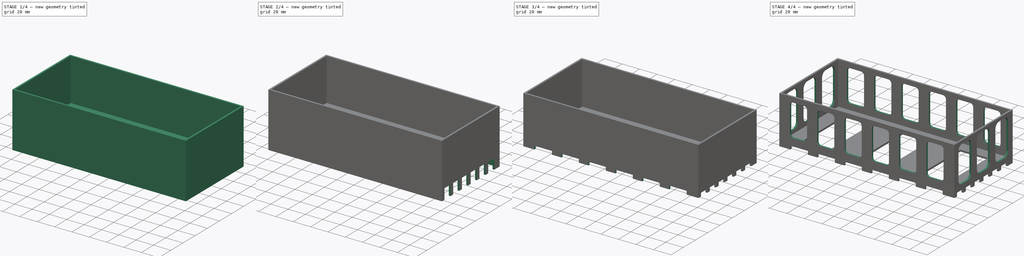
[diagram: build sequence overview — one tinted view per stage of 4, left to right]
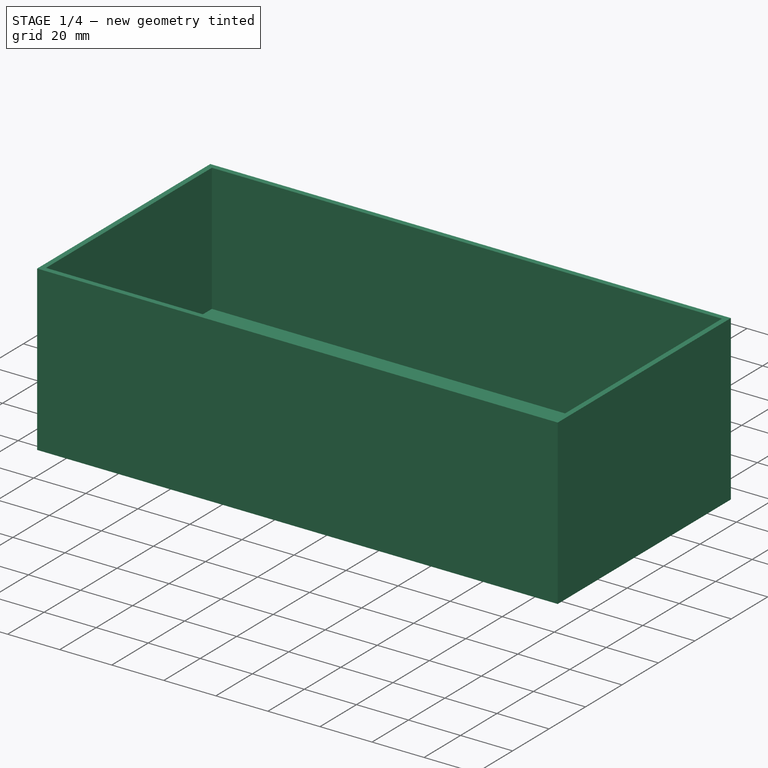
[diagram: stage 1 of 4 — iso view after this stage's code; geometry added in this stage tinted green]
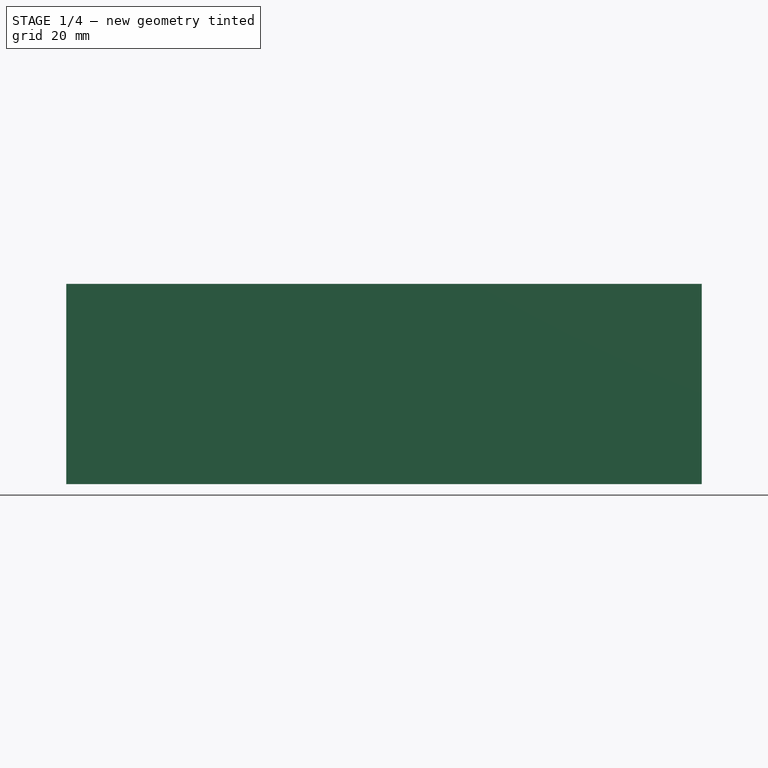
[diagram: stage 1 of 4 — front view after this stage's code; geometry added in this stage tinted green]
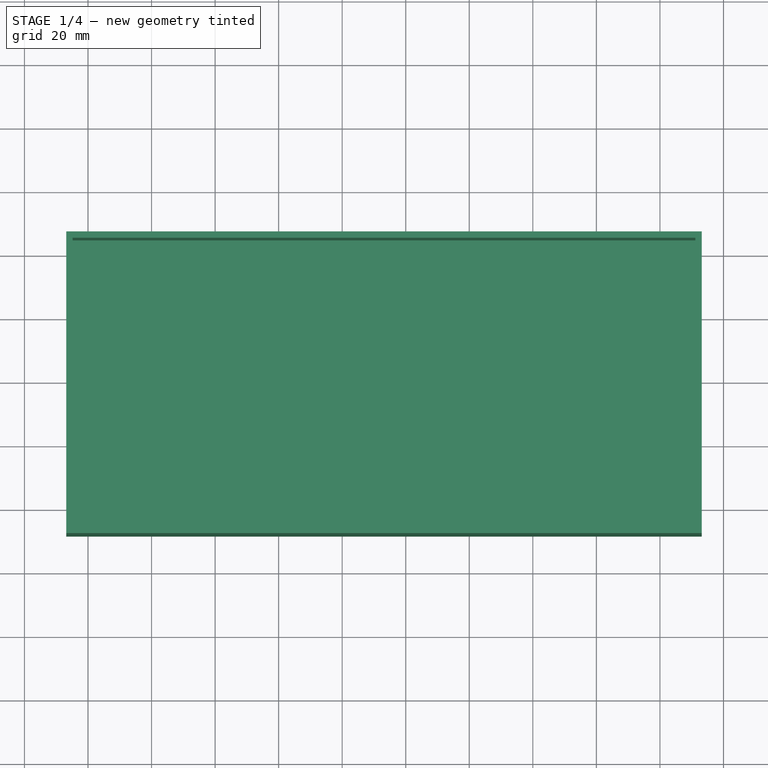
[diagram: stage 1 of 4 — top view after this stage's code; geometry added in this stage tinted green]
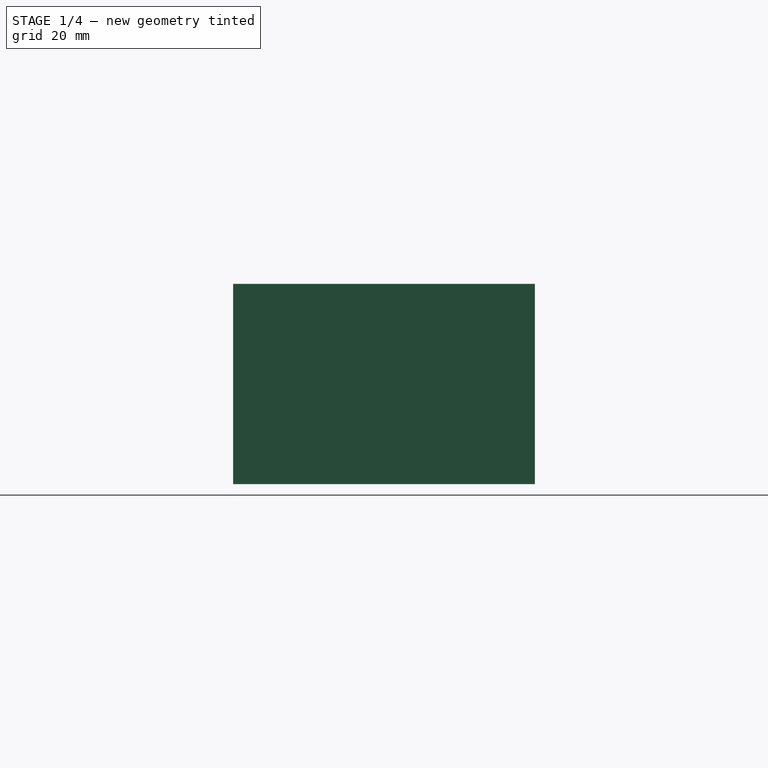
[diagram: stage 1 of 4 — right view after this stage's code; geometry added in this stage tinted green]
FCSTD DOCUMENT  (FreeCAD 1.0R39319 (Git))
Label: washstand01
License: All rights reserved
LicenseURL: https://en.wikipedia.org/wiki/All_rights_reserved
objects: Sketcher::SketchObject×9, PartDesign::Pocket×8, PartDesign::Pad×1, PartDesign::Body×1
note: 46 computed .brp shape members not serialized (recipe doc carries the construction recipe); baked Part::Feature solids carry a one-line shape summary decoded from their .brp

FEATURE [Sketcher::SketchObject] Sketch
  ArcFitTolerance = 1e-06
  AttachmentSupport = -> [XY_Plane]
  FullyConstrained = false
  MakeInternals = false
  MapMode = 5
  sketch-geometry (4):
    g0: LineSegment StartX=-126.841 StartY=46.665 StartZ=0 EndX=-126.841 EndY=-48.335 EndZ=0
    g1: LineSegment StartX=-126.841 StartY=-48.335 StartZ=0 EndX=73.1595 EndY=-48.335 EndZ=0
    g2: LineSegment StartX=73.1595 StartY=-48.335 StartZ=0 EndX=73.1595 EndY=46.665 EndZ=0
    g3: LineSegment StartX=73.1595 StartY=46.665 StartZ=0 EndX=-126.841 EndY=46.665 EndZ=0
  constraints (10):
    c: Coincident(g0,g1)
    c: Coincident(g1,g2)
    c: Coincident(g2,g3)
    c: Coincident(g3,g0)
    c: Vertical(g0)
    c: Vertical(g2)
    c: Horizontal(g1)
    c: Horizontal(g3)
    c: DistanceX(g3,g3) = 200
    c: DistanceY(g2,g2) = 95
FEATURE [PartDesign::Pad] Pad
  Direction = (0,0,1)
  Length = 50
  Length2 = 13
  Profile = -> Sketch
  ReferenceAxis = -> Sketch [N_Axis]
  Refine = true
  Suppressed = false
  Type = 4
FEATURE [Sketcher::SketchObject] Sketch001
  ArcFitTolerance = 1e-06
  AttachmentSupport = -> [Pad]
  ExternalGeometry = -> [Pad]
  FullyConstrained = true
  MakeInternals = false
  MapMode = 5
  Placement = pos=(0,0,50) rot=(0,0,1;0rad)
  sketch-geometry (4):
    g0: LineSegment StartX=-124.841 StartY=44.665 StartZ=0 EndX=-124.841 EndY=-46.335 EndZ=0
    g1: LineSegment StartX=-124.841 StartY=-46.335 StartZ=0 EndX=71.1595 EndY=-46.335 EndZ=0
    g2: LineSegment StartX=71.1595 StartY=-46.335 StartZ=0 EndX=71.1595 EndY=44.665 EndZ=0
    g3: LineSegment StartX=71.1595 StartY=44.665 StartZ=0 EndX=-124.841 EndY=44.665 EndZ=0
  constraints (12):
    c: Coincident(g0,g1)
    c: Coincident(g1,g2)
    c: Coincident(g2,g3)
    c: Coincident(g3,g0)
    c: Vertical(g0)
    c: Vertical(g2)
    c: Horizontal(g1)
    c: Horizontal(g3)
    c: DistanceX(g3,g3) = 196
    c: DistanceY(g2,g2) = 91
    c: Distance(g-6,g2) = 2
    c: Distance(g-5,g1) = 2
FEATURE [PartDesign::Pocket] Pocket
  BaseFeature = -> Pad
  Direction = (0,0,-1)
  Length = 49
  Length2 = 5
  Profile = -> Sketch001
  ReferenceAxis = -> Sketch001 [N_Axis]
  Refine = true
  Suppressed = false
  Type = 0
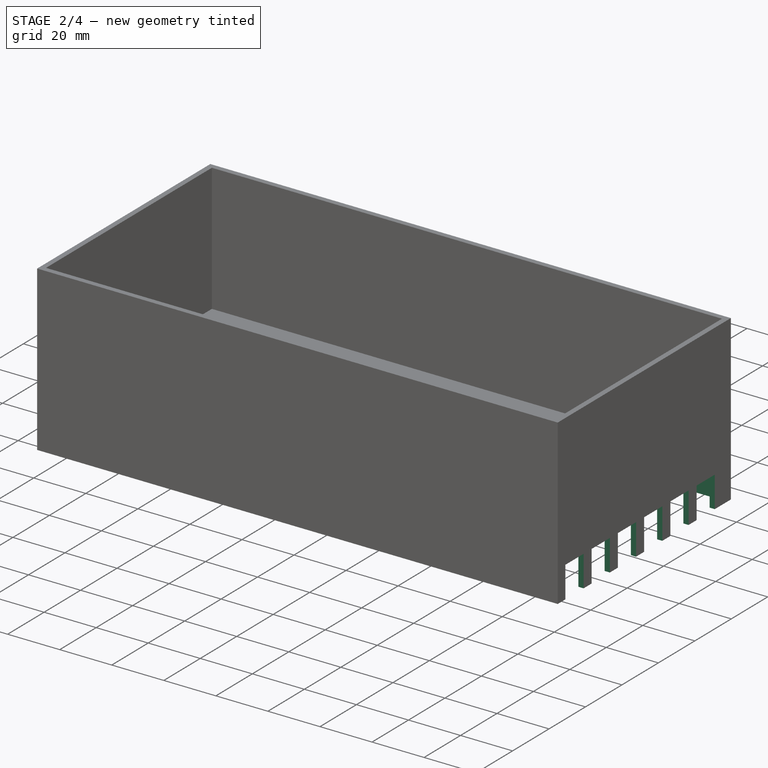
[diagram: stage 2 of 4 — iso view after this stage's code; geometry added in this stage tinted green]
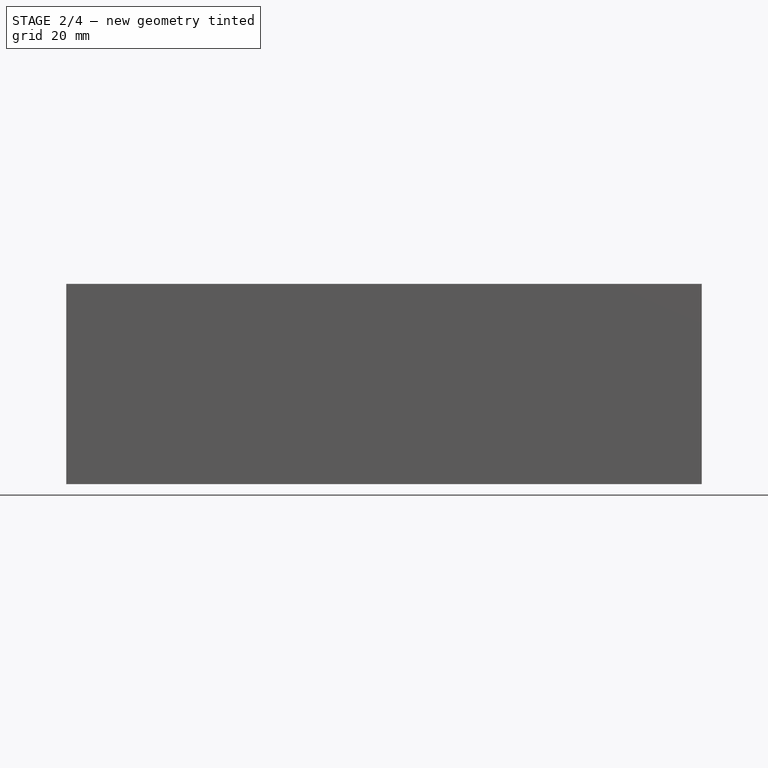
[diagram: stage 2 of 4 — front view after this stage's code; geometry added in this stage tinted green]
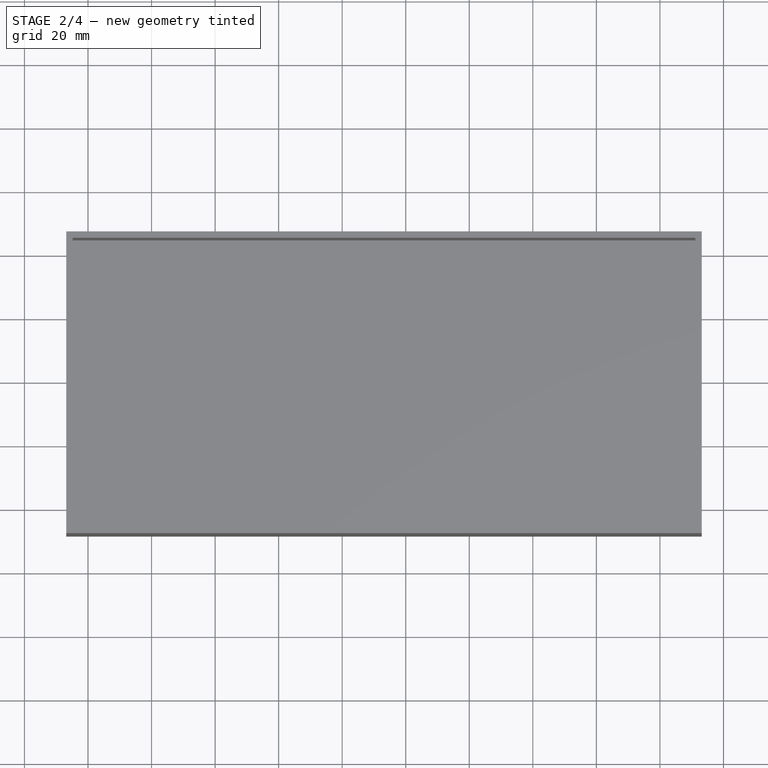
[diagram: stage 2 of 4 — top view after this stage's code; geometry added in this stage tinted green]
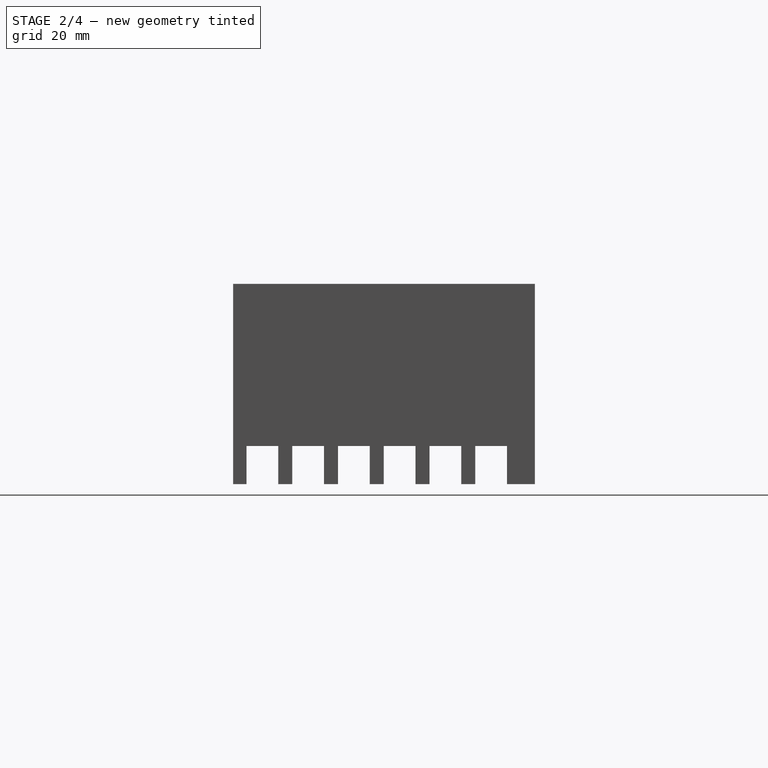
[diagram: stage 2 of 4 — right view after this stage's code; geometry added in this stage tinted green]
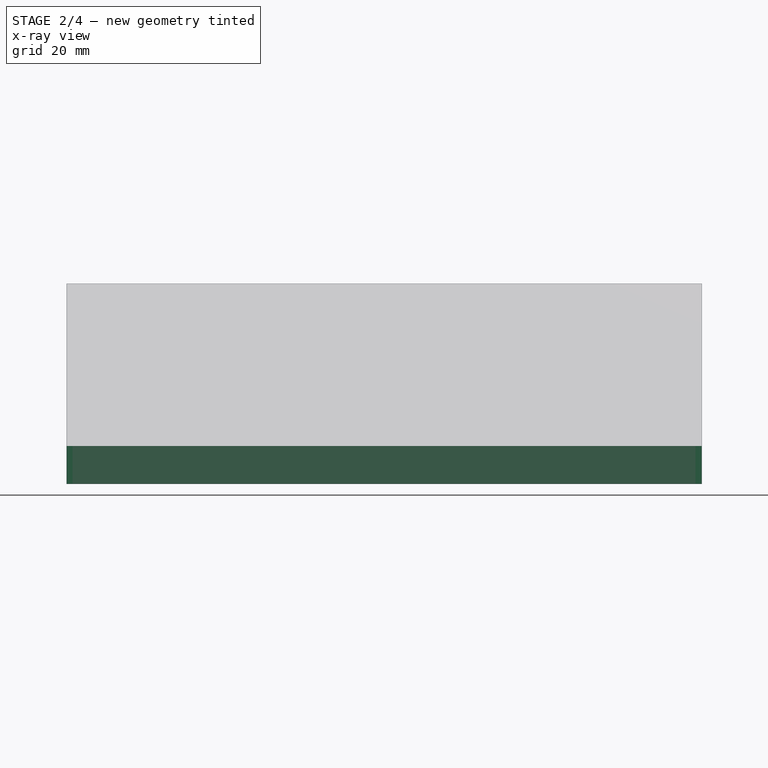
[diagram: stage 2 of 4 — x-ray composite at the front view; earlier geometry ghosted, this stage's added geometry solid]
FEATURE [Sketcher::SketchObject] Sketch002
  ArcFitTolerance = 1e-06
  AttachmentSupport = -> [Pocket]
  ExternalGeometry = -> [Pocket]
  FullyConstrained = true
  MakeInternals = false
  MapMode = 5
  Placement = pos=(0,0,-13) rot=(1,0,0;3.14159rad)
  sketch-geometry (4):
    g0: LineSegment StartX=-124.841 StartY=46.335 StartZ=0 EndX=-124.841 EndY=-44.665 EndZ=0
    g1: LineSegment StartX=-124.841 StartY=-44.665 StartZ=0 EndX=71.1595 EndY=-44.665 EndZ=0
    g2: LineSegment StartX=71.1595 StartY=-44.665 StartZ=0 EndX=71.1595 EndY=46.335 EndZ=0
    g3: LineSegment StartX=71.1595 StartY=46.335 StartZ=0 EndX=-124.841 EndY=46.335 EndZ=0
  constraints (10):
    c: Coincident(g0,g1)
    c: Coincident(g1,g2)
    c: Coincident(g2,g3)
    c: Coincident(g3,g0)
    c: Vertical(g0)
    c: Vertical(g2)
    c: Horizontal(g1)
    c: Horizontal(g3)
    c: Coincident(g0,g-5)
    c: Coincident(g1,g-6)
FEATURE [PartDesign::Pocket] Pocket001
  BaseFeature = -> Pocket
  Direction = (0,0,1)
  Length = 12
  Length2 = 5
  Profile = -> Sketch002
  ReferenceAxis = -> Sketch002 [N_Axis]
  Refine = true
  Suppressed = false
  Type = 0
FEATURE [Sketcher::SketchObject] Sketch003
  ArcFitTolerance = 1e-06
  AttachmentSupport = -> [Pocket001]
  FullyConstrained = false
  MakeInternals = false
  MapMode = 5
  Placement = pos=(73.1595,0,0) rot=(0.57735,0.57735,0.57735;2.0944rad)
  sketch-geometry (24):
    g0: LineSegment StartX=-34.1153 StartY=-14.5307 StartZ=0 EndX=-34.1153 EndY=-1 EndZ=0
    g1: LineSegment StartX=-34.1153 StartY=-1 StartZ=0 EndX=-44.1153 EndY=-1 EndZ=0
    g2: LineSegment StartX=-44.1153 StartY=-1 StartZ=0 EndX=-44.1153 EndY=-14.5307 EndZ=0
    g3: LineSegment StartX=-44.1153 StartY=-14.5307 StartZ=0 EndX=-34.1153 EndY=-14.5307 EndZ=0
    g4: LineSegment StartX=-19.7179 StartY=-14.5307 StartZ=0 EndX=-19.7179 EndY=-1 EndZ=0
    g5: LineSegment StartX=-19.7179 StartY=-1 StartZ=0 EndX=-29.7179 EndY=-1 EndZ=0
    g6: LineSegment StartX=-29.7179 StartY=-1 StartZ=0 EndX=-29.7179 EndY=-14.5307 EndZ=0
    g7: LineSegment StartX=-29.7179 StartY=-14.5307 StartZ=0 EndX=-19.7179 EndY=-14.5307 EndZ=0
    g8: LineSegment StartX=-5.32051 StartY=-14.5307 StartZ=0 EndX=-5.32051 EndY=-1 EndZ=0
    g9: LineSegment StartX=-5.32051 StartY=-1 StartZ=0 EndX=-15.3205 EndY=-1 EndZ=0
    g10: LineSegment StartX=-15.3205 StartY=-1 StartZ=0 EndX=-15.3205 EndY=-14.5307 EndZ=0
    g11: LineSegment StartX=-15.3205 StartY=-14.5307 StartZ=0 EndX=-5.32051 EndY=-14.5307 EndZ=0
    g12: LineSegment StartX=9.07687 StartY=-14.5307 StartZ=0 EndX=9.07687 EndY=-1 EndZ=0
    g13: LineSegment StartX=9.07687 StartY=-1 StartZ=0 EndX=-0.923132 EndY=-1 EndZ=0
    g14: LineSegment StartX=-0.923132 StartY=-1 StartZ=0 EndX=-0.923132 EndY=-14.5307 EndZ=0
    g15: LineSegment StartX=-0.923132 StartY=-14.5307 StartZ=0 EndX=9.07687 EndY=-14.5307 EndZ=0
    g16: LineSegment StartX=23.4742 StartY=-14.5307 StartZ=0 EndX=23.4742 EndY=-1 EndZ=0
    g17: LineSegment StartX=23.4742 StartY=-1 StartZ=0 EndX=13.4742 EndY=-1 EndZ=0
    g18: LineSegment StartX=13.4742 StartY=-1 StartZ=0 EndX=13.4742 EndY=-14.5307 EndZ=0
    g19: LineSegment StartX=13.4742 StartY=-14.5307 StartZ=0 EndX=23.4742 EndY=-14.5307 EndZ=0
    g20: LineSegment StartX=37.8716 StartY=-14.5307 StartZ=0 EndX=37.8716 EndY=-1 EndZ=0
    g21: LineSegment StartX=37.8716 StartY=-1 StartZ=0 EndX=27.8716 EndY=-1 EndZ=0
    g22: LineSegment StartX=27.8716 StartY=-1 StartZ=0 EndX=27.8716 EndY=-14.5307 EndZ=0
    g23: LineSegment StartX=27.8716 StartY=-14.5307 StartZ=0 EndX=37.8716 EndY=-14.5307 EndZ=0
  constraints (48):
    c: Coincident(g0,g1)
    c: Coincident(g1,g2)
    c: Coincident(g2,g3)
    c: Coincident(g3,g0)
    c: Vertical(g0)
    c: Vertical(g2)
    c: Horizontal(g1)
    c: Horizontal(g3)
    c: Coincident(g4,g5)
    c: Coincident(g8,g9)
    c: Coincident(g12,g13)
    c: Coincident(g16,g17)
    c: Coincident(g20,g21)
    c: Coincident(g5,g6)
    c: Coincident(g9,g10)
    c: Coincident(g13,g14)
    c: Coincident(g17,g18)
    c: Coincident(g21,g22)
    c: Coincident(g6,g7)
    c: Coincident(g10,g11)
    c: Coincident(g14,g15)
    c: Coincident(g18,g19)
    c: Coincident(g22,g23)
    c: Coincident(g7,g4)
    c: Coincident(g11,g8)
    c: Coincident(g15,g12)
    c: Coincident(g19,g16)
    c: Coincident(g23,g20)
    c: Vertical(g4)
    c: Vertical(g8)
    c: Vertical(g12)
    c: Vertical(g16)
    c: Vertical(g20)
    c: Vertical(g6)
    c: Vertical(g10)
    c: Vertical(g14)
    c: Vertical(g18)
    c: Vertical(g22)
    c: Horizontal(g5)
    c: Horizontal(g9)
    c: Horizontal(g13)
    c: Horizontal(g17)
    c: Horizontal(g21)
    c: Horizontal(g7)
    c: Horizontal(g11)
    c: Horizontal(g15)
    c: Horizontal(g19)
    c: Horizontal(g23)
FEATURE [PartDesign::Pocket] Pocket002
  BaseFeature = -> Pocket001
  Direction = (-1,0,0)
  Length = 5
  Length2 = 5
  Profile = -> Sketch003
  ReferenceAxis = -> Sketch003 [N_Axis]
  Refine = true
  Suppressed = false
  Type = 1
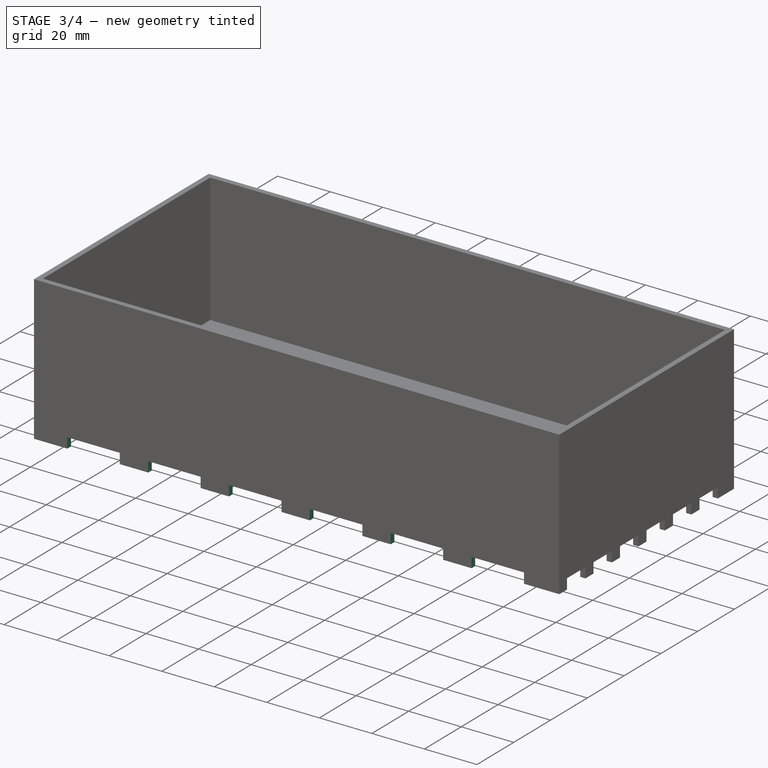
[diagram: stage 3 of 4 — iso view after this stage's code; geometry added in this stage tinted green]
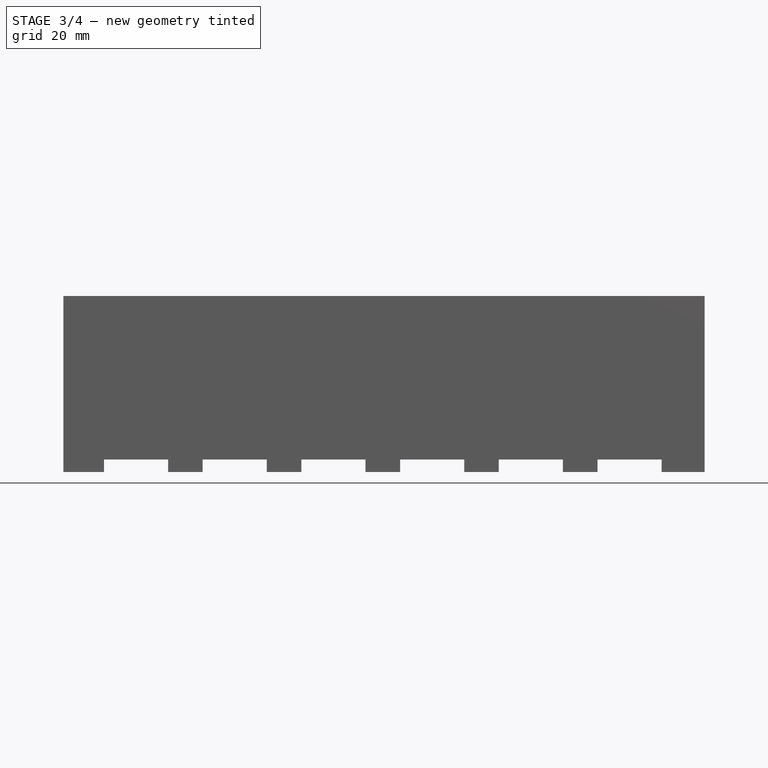
[diagram: stage 3 of 4 — front view after this stage's code; geometry added in this stage tinted green]
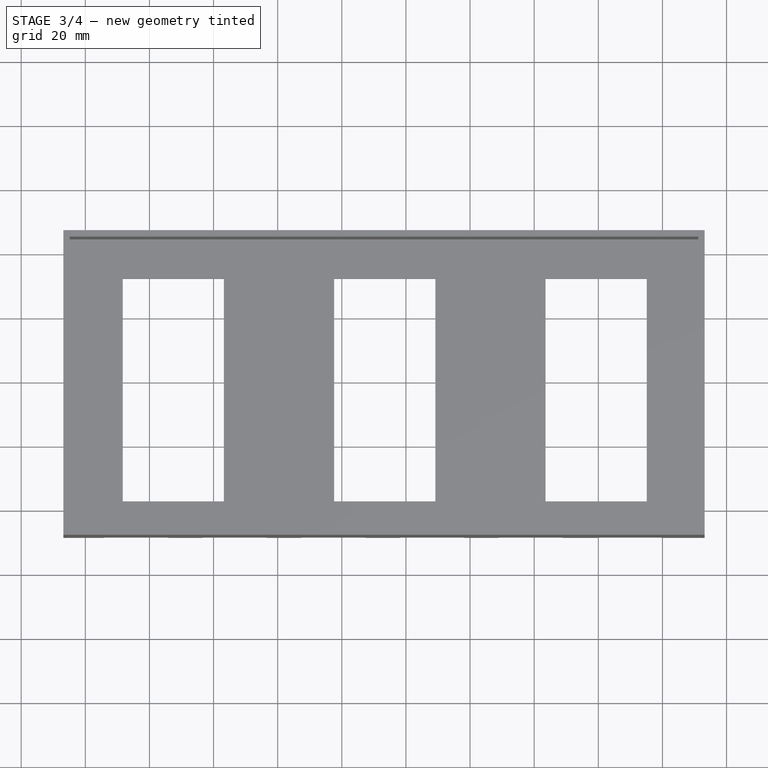
[diagram: stage 3 of 4 — top view after this stage's code; geometry added in this stage tinted green]
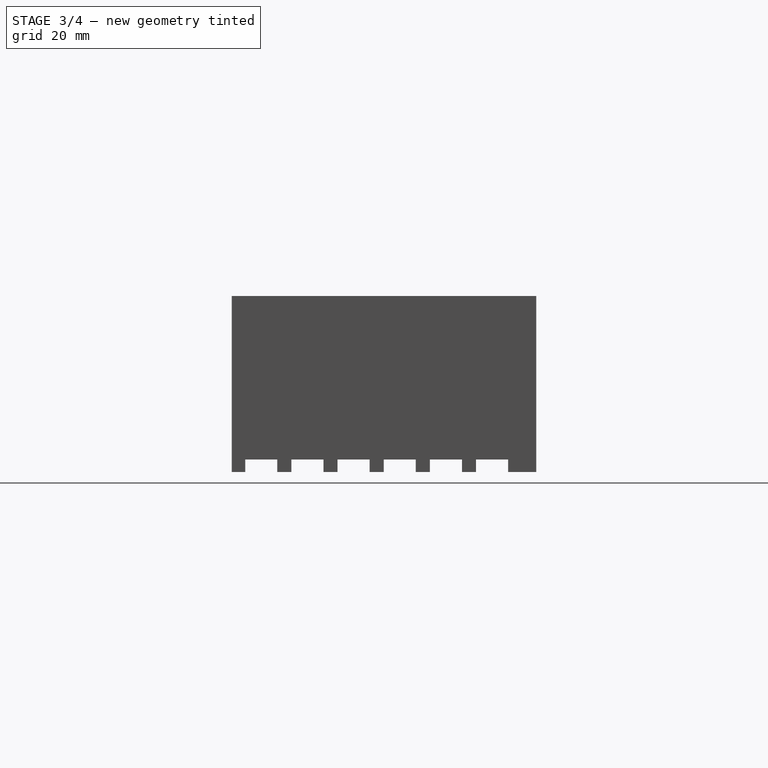
[diagram: stage 3 of 4 — right view after this stage's code; geometry added in this stage tinted green]
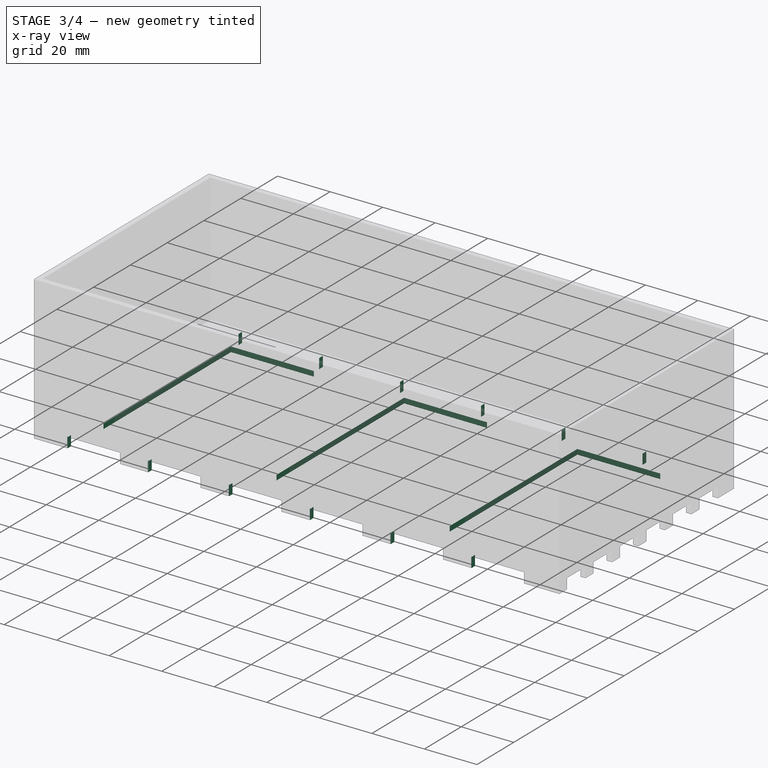
[diagram: stage 3 of 4 — x-ray composite at the iso view; earlier geometry ghosted, this stage's added geometry solid]
FEATURE [Sketcher::SketchObject] Sketch004
  ArcFitTolerance = 1e-06
  AttachmentSupport = -> [Pocket002]
  ExternalGeometry = -> [Pocket002]
  FullyConstrained = false
  MakeInternals = false
  MapMode = 5
  Placement = pos=(0,46.665,0) rot=(0,0.707107,0.707107;3.14159rad)
  sketch-geometry (24):
    g0: LineSegment StartX=-39.7324 StartY=-20.6591 StartZ=0 EndX=-39.7324 EndY=-1 EndZ=0
    g1: LineSegment StartX=-39.7324 StartY=-1 StartZ=0 EndX=-59.7324 EndY=-1 EndZ=0
    g2: LineSegment StartX=-59.7324 StartY=-1 StartZ=0 EndX=-59.7324 EndY=-20.6591 EndZ=0
    g3: LineSegment StartX=-59.7324 StartY=-20.6591 StartZ=0 EndX=-39.7324 EndY=-20.6591 EndZ=0
    g4: LineSegment StartX=-8.95152 StartY=-20.6591 StartZ=0 EndX=-8.95152 EndY=-1 EndZ=0
    g5: LineSegment StartX=-8.95152 StartY=-1 StartZ=0 EndX=-28.9515 EndY=-1 EndZ=0
    g6: LineSegment StartX=-28.9515 StartY=-1 StartZ=0 EndX=-28.9515 EndY=-20.6591 EndZ=0
    g7: LineSegment StartX=-28.9515 StartY=-20.6591 StartZ=0 EndX=-8.95152 EndY=-20.6591 EndZ=0
    g8: LineSegment StartX=21.8294 StartY=-20.6591 StartZ=0 EndX=21.8294 EndY=-1 EndZ=0
    g9: LineSegment StartX=21.8294 StartY=-1 StartZ=0 EndX=1.82938 EndY=-1 EndZ=0
    g10: LineSegment StartX=1.82938 StartY=-1 StartZ=0 EndX=1.82938 EndY=-20.6591 EndZ=0
    g11: LineSegment StartX=1.82938 StartY=-20.6591 StartZ=0 EndX=21.8294 EndY=-20.6591 EndZ=0
    g12: LineSegment StartX=52.6103 StartY=-20.6591 StartZ=0 EndX=52.6103 EndY=-1 EndZ=0
    g13: LineSegment StartX=52.6103 StartY=-1 StartZ=0 EndX=32.6103 EndY=-1 EndZ=0
    g14: LineSegment StartX=32.6103 StartY=-1 StartZ=0 EndX=32.6103 EndY=-20.6591 EndZ=0
    g15: LineSegment StartX=32.6103 StartY=-20.6591 StartZ=0 EndX=52.6103 EndY=-20.6591 EndZ=0
    g16: LineSegment StartX=83.3912 StartY=-20.6591 StartZ=0 EndX=83.3912 EndY=-1 EndZ=0
    g17: LineSegment StartX=83.3912 StartY=-1 StartZ=0 EndX=63.3912 EndY=-1 EndZ=0
    g18: LineSegment StartX=63.3912 StartY=-1 StartZ=0 EndX=63.3912 EndY=-20.6591 EndZ=0
    g19: LineSegment StartX=63.3912 StartY=-20.6591 StartZ=0 EndX=83.3912 EndY=-20.6591 EndZ=0
    g20: LineSegment StartX=114.172 StartY=-20.6591 StartZ=0 EndX=114.172 EndY=-1 EndZ=0
    g21: LineSegment StartX=114.172 StartY=-1 StartZ=0 EndX=94.1721 EndY=-1 EndZ=0
    g22: LineSegment StartX=94.1721 StartY=-1 StartZ=0 EndX=94.1721 EndY=-20.6591 EndZ=0
    g23: LineSegment StartX=94.1721 StartY=-20.6591 StartZ=0 EndX=114.172 EndY=-20.6591 EndZ=0
  constraints (55):
    c: Coincident(g0,g1)
    c: Coincident(g1,g2)
    c: Coincident(g2,g3)
    c: Coincident(g3,g0)
    c: Vertical(g0)
    c: Vertical(g2)
    c: Horizontal(g1)
    c: Horizontal(g3)
    c: PointOnObject(g1,g-3)
    c: DistanceX(g3,g3) = 20
    c: Coincident(g4,g5)
    c: Coincident(g8,g9)
    c: Coincident(g12,g13)
    c: Coincident(g16,g17)
    c: Coincident(g20,g21)
    c: Coincident(g5,g6)
    c: Coincident(g9,g10)
    c: Coincident(g13,g14)
    c: Coincident(g17,g18)
    c: Coincident(g21,g22)
    c: Coincident(g6,g7)
    c: Coincident(g10,g11)
    c: Coincident(g14,g15)
    c: Coincident(g18,g19)
    c: Coincident(g22,g23)
    c: Coincident(g7,g4)
    c: Coincident(g11,g8)
    c: Coincident(g15,g12)
    c: Coincident(g19,g16)
    c: Coincident(g23,g20)
    c: Vertical(g4)
    c: Vertical(g8)
    c: Vertical(g12)
    c: Vertical(g16)
    c: Vertical(g20)
    c: Vertical(g6)
    c: Vertical(g10)
    c: Vertical(g14)
    c: Vertical(g18)
    c: Vertical(g22)
    c: Horizontal(g5)
    c: Horizontal(g9)
    c: Horizontal(g13)
    c: Horizontal(g17)
    c: Horizontal(g21)
    c: Horizontal(g7)
    c: Horizontal(g11)
    c: Horizontal(g15)
    c: Horizontal(g19)
    c: Horizontal(g23)
    c: DistanceX(g7,g7) = 20
    c: DistanceX(g11,g11) = 20
    c: DistanceX(g15,g15) = 20
    c: DistanceX(g19,g19) = 20
    c: DistanceX(g23,g23) = 20
FEATURE [PartDesign::Pocket] Pocket003
  BaseFeature = -> Pocket002
  Direction = (0,-1,2e-16)
  Length = 5
  Length2 = 5
  Profile = -> Sketch004
  ReferenceAxis = -> Sketch004 [N_Axis]
  Refine = true
  Suppressed = false
  Type = 1
FEATURE [Sketcher::SketchObject] Sketch005
  ArcFitTolerance = 1e-06
  AttachmentSupport = -> [Pocket003]
  ExternalGeometry = -> [Pocket003]
  FullyConstrained = false
  MakeInternals = false
  MapMode = 5
  Placement = pos=(73.1595,0,0) rot=(0.57735,0.57735,0.57735;2.0944rad)
  sketch-geometry (4):
    g0: LineSegment StartX=53.0461 StartY=-15.79 StartZ=0 EndX=53.0461 EndY=-4.88663 EndZ=0
    g1: LineSegment StartX=53.0461 StartY=-4.88663 StartZ=0 EndX=-68.7384 EndY=-4.88663 EndZ=0
    g2: LineSegment StartX=-68.7384 StartY=-4.88663 StartZ=0 EndX=-68.7384 EndY=-15.79 EndZ=0
    g3: LineSegment StartX=-68.7384 StartY=-15.79 StartZ=0 EndX=53.0461 EndY=-15.79 EndZ=0
  constraints (8):
    c: Coincident(g0,g1)
    c: Coincident(g1,g2)
    c: Coincident(g2,g3)
    c: Coincident(g3,g0)
    c: Vertical(g0)
    c: Vertical(g2)
    c: Horizontal(g1)
    c: Horizontal(g3)
FEATURE [PartDesign::Pocket] Pocket004
  BaseFeature = -> Pocket003
  Direction = (-1,0,0)
  Length = 5
  Length2 = 5
  Profile = -> Sketch005
  ReferenceAxis = -> Sketch005 [N_Axis]
  Refine = true
  Suppressed = false
  Type = 1
FEATURE [Sketcher::SketchObject] Sketch006
  ArcFitTolerance = 1e-06
  AttachmentSupport = -> [Pocket004]
  FullyConstrained = false
  MakeInternals = false
  MapMode = 5
  Placement = pos=(0,0,-1) rot=(1,0,0;3.14159rad)
  sketch-geometry (12):
    g0: LineSegment StartX=-108.334 StartY=37.0717 StartZ=0 EndX=-108.334 EndY=-32.3297 EndZ=0
    g1: LineSegment StartX=-108.334 StartY=-32.3297 StartZ=0 EndX=-76.7641 EndY=-32.3297 EndZ=0
    g2: LineSegment StartX=-76.7641 StartY=-32.3297 StartZ=0 EndX=-76.7641 EndY=37.0717 EndZ=0
    g3: LineSegment StartX=-76.7641 StartY=37.0717 StartZ=0 EndX=-108.334 EndY=37.0717 EndZ=0
    g4: LineSegment StartX=-42.3998 StartY=37.0717 StartZ=0 EndX=-42.3998 EndY=-32.3297 EndZ=0
    g5: LineSegment StartX=-42.3998 StartY=-32.3297 StartZ=0 EndX=-10.83 EndY=-32.3297 EndZ=0
    g6: LineSegment StartX=-10.83 StartY=-32.3297 StartZ=0 EndX=-10.83 EndY=37.0717 EndZ=0
    g7: LineSegment StartX=-10.83 StartY=37.0717 StartZ=0 EndX=-42.3998 EndY=37.0717 EndZ=0
    g8: LineSegment StartX=23.5344 StartY=37.0717 StartZ=0 EndX=23.5344 EndY=-32.3297 EndZ=0
    g9: LineSegment StartX=23.5344 StartY=-32.3297 StartZ=0 EndX=55.1042 EndY=-32.3297 EndZ=0
    g10: LineSegment StartX=55.1042 StartY=-32.3297 StartZ=0 EndX=55.1042 EndY=37.0717 EndZ=0
    g11: LineSegment StartX=55.1042 StartY=37.0717 StartZ=0 EndX=23.5344 EndY=37.0717 EndZ=0
  constraints (24):
    c: Coincident(g0,g1)
    c: Coincident(g1,g2)
    c: Coincident(g2,g3)
    c: Coincident(g3,g0)
    c: Vertical(g0)
    c: Vertical(g2)
    c: Horizontal(g1)
    c: Horizontal(g3)
    c: Coincident(g4,g5)
    c: Coincident(g8,g9)
    c: Coincident(g5,g6)
    c: Coincident(g9,g10)
    c: Coincident(g6,g7)
    c: Coincident(g10,g11)
    c: Coincident(g7,g4)
    c: Coincident(g11,g8)
    c: Vertical(g4)
    c: Vertical(g8)
    c: Vertical(g6)
    c: Vertical(g10)
    c: Horizontal(g5)
    c: Horizontal(g9)
    c: Horizontal(g7)
    c: Horizontal(g11)
FEATURE [PartDesign::Pocket] Pocket005
  BaseFeature = -> Pocket004
  Direction = (0,0,1)
  Length = 5
  Length2 = 5
  Profile = -> Sketch006
  ReferenceAxis = -> Sketch006 [N_Axis]
  Refine = true
  Suppressed = false
  Type = 0
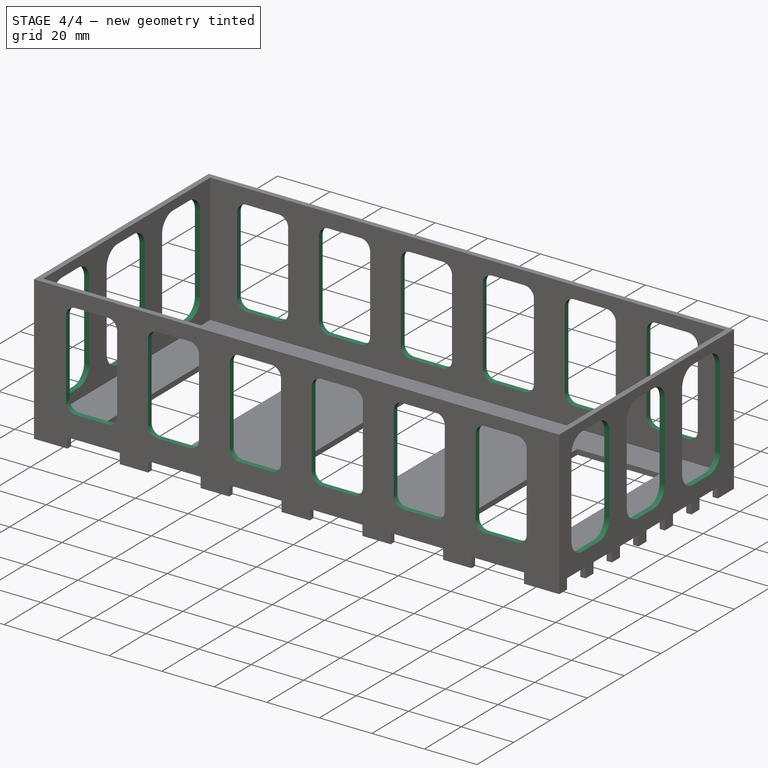
[diagram: stage 4 of 4 — iso view after this stage's code; geometry added in this stage tinted green]
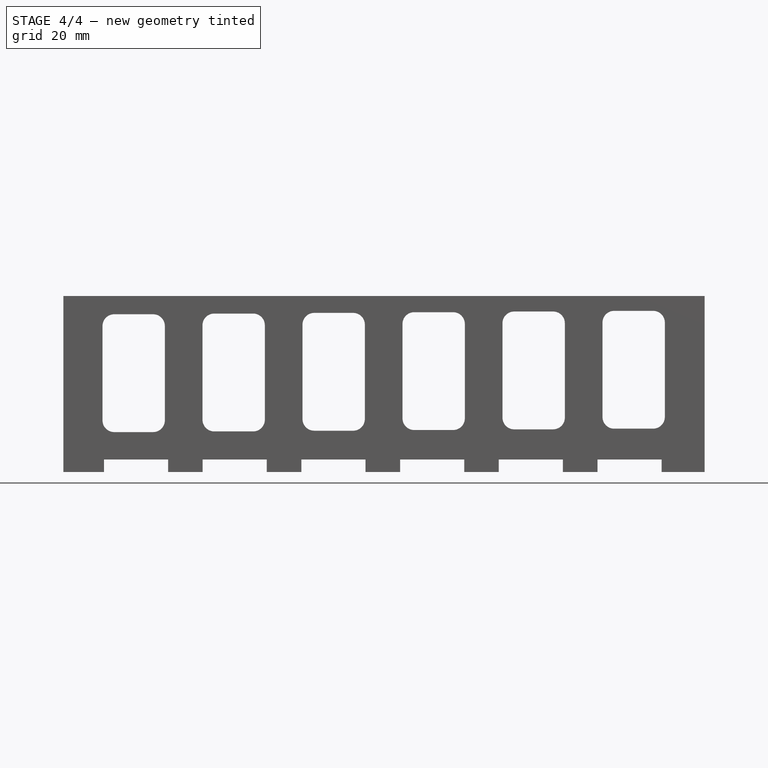
[diagram: stage 4 of 4 — front view after this stage's code; geometry added in this stage tinted green]
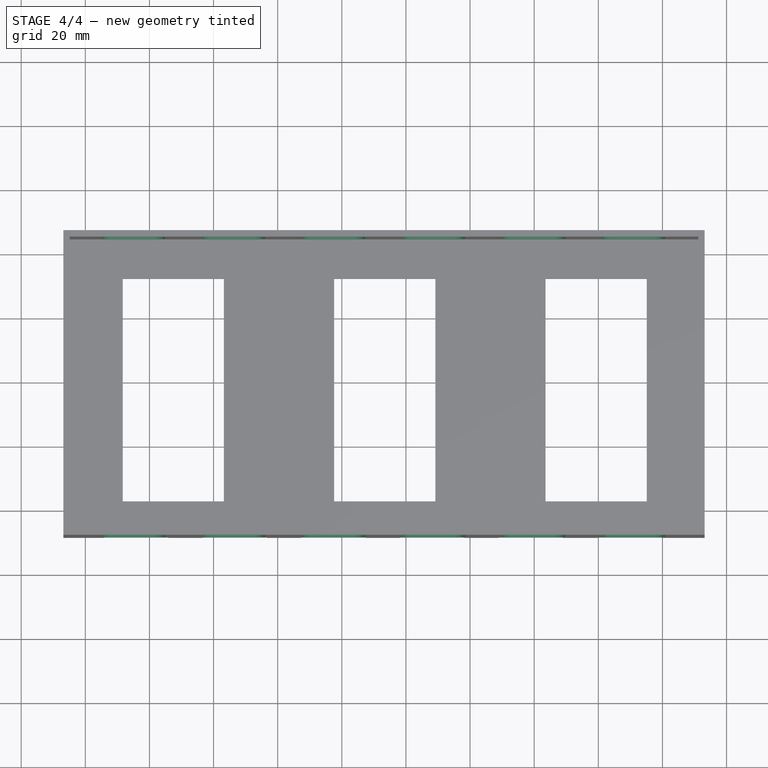
[diagram: stage 4 of 4 — top view after this stage's code; geometry added in this stage tinted green]
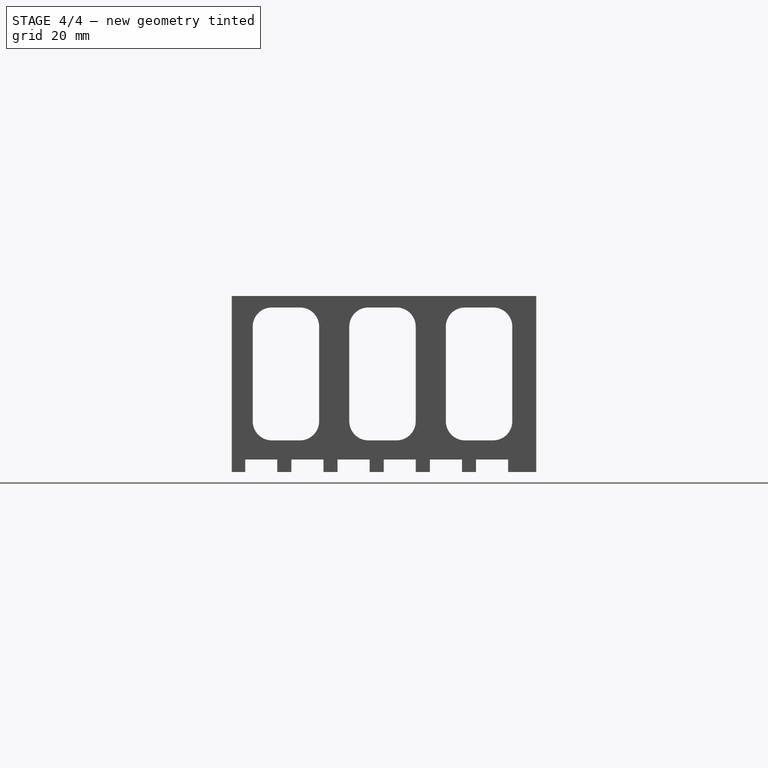
[diagram: stage 4 of 4 — right view after this stage's code; geometry added in this stage tinted green]
FEATURE [Sketcher::SketchObject] Sketch007
  ArcFitTolerance = 1e-06
  AttachmentSupport = -> [Pocket005]
  FullyConstrained = false
  MakeInternals = false
  MapMode = 5
  Placement = pos=(73.1595,0,0) rot=(0.57735,0.57735,0.57735;2.0944rad)
  sketch-geometry (30):
    g0: LineSegment StartX=-41.7866 StartY=40.4453 StartZ=0 EndX=-41.7866 EndY=10.9472 EndZ=0
    g1: LineSegment StartX=-35.8151 StartY=4.97578 StartZ=0 EndX=-27.0375 EndY=4.97578 EndZ=0
    g2: LineSegment StartX=-21.0661 StartY=10.9472 StartZ=0 EndX=-21.0661 EndY=40.4453 EndZ=0
    g3: LineSegment StartX=-27.0375 StartY=46.4167 StartZ=0 EndX=-35.8151 EndY=46.4167 EndZ=0
    g4: ArcOfCircle CenterX=-35.8151 CenterY=40.4453 CenterZ=0 NormalX=0 NormalY=0 NormalZ=1 AngleXU=0 Radius=5.97143 StartAngle=1.5708 EndAngle=3.14159
    g5: ArcOfCircle CenterX=-35.8151 CenterY=10.9472 CenterZ=0 NormalX=0 NormalY=0 NormalZ=1 AngleXU=0 Radius=5.97143 StartAngle=3.14159 EndAngle=4.71239
    g6: ArcOfCircle CenterX=-27.0375 CenterY=10.9472 CenterZ=0 NormalX=0 NormalY=0 NormalZ=1 AngleXU=0 Radius=5.97143 StartAngle=4.71239 EndAngle=6.28319
    g7: ArcOfCircle CenterX=-27.0375 CenterY=40.4453 CenterZ=0 NormalX=0 NormalY=0 NormalZ=1 AngleXU=0 Radius=5.97143 StartAngle=0 EndAngle=1.5708
    g8: GeomPoint [constr] X=-41.7866 Y=46.4167 Z=0
    g9: GeomPoint [constr] X=-21.0661 Y=4.97578 Z=0
    g10: LineSegment StartX=-11.6671 StartY=40.4453 StartZ=0 EndX=-11.6671 EndY=10.9472 EndZ=0
    g11: LineSegment StartX=-5.69571 StartY=4.97578 StartZ=0 EndX=3.08188 EndY=4.97578 EndZ=0
    g12: LineSegment StartX=9.05331 StartY=10.9472 StartZ=0 EndX=9.05331 EndY=40.4453 EndZ=0
    g13: LineSegment StartX=3.08188 StartY=46.4167 StartZ=0 EndX=-5.69571 EndY=46.4167 EndZ=0
    g14: ArcOfCircle CenterX=-5.69571 CenterY=40.4453 CenterZ=0 NormalX=0 NormalY=0 NormalZ=1 AngleXU=0 Radius=5.97143 StartAngle=1.5708 EndAngle=3.14159
    g15: ArcOfCircle CenterX=-5.69571 CenterY=10.9472 CenterZ=0 NormalX=0 NormalY=0 NormalZ=1 AngleXU=0 Radius=5.97143 StartAngle=3.14159 EndAngle=4.71239
    g16: ArcOfCircle CenterX=3.08188 CenterY=10.9472 CenterZ=0 NormalX=0 NormalY=0 NormalZ=1 AngleXU=0 Radius=5.97143 StartAngle=4.71239 EndAngle=6.28319
    g17: ArcOfCircle CenterX=3.08188 CenterY=40.4453 CenterZ=0 NormalX=0 NormalY=0 NormalZ=1 AngleXU=0 Radius=5.97143 StartAngle=0 EndAngle=1.5708
    g18: GeomPoint [constr] X=-11.6671 Y=46.4167 Z=0
    g19: GeomPoint [constr] X=9.05331 Y=4.97578 Z=0
    g20: LineSegment StartX=18.4523 StartY=40.4453 StartZ=0 EndX=18.4523 EndY=10.9472 EndZ=0
    g21: LineSegment StartX=24.4237 StartY=4.97578 StartZ=0 EndX=33.2013 EndY=4.97578 EndZ=0
    g22: LineSegment StartX=39.1727 StartY=10.9472 StartZ=0 EndX=39.1727 EndY=40.4453 EndZ=0
    g23: LineSegment StartX=33.2013 StartY=46.4167 StartZ=0 EndX=24.4237 EndY=46.4167 EndZ=0
    g24: ArcOfCircle CenterX=24.4237 CenterY=40.4453 CenterZ=0 NormalX=0 NormalY=0 NormalZ=1 AngleXU=0 Radius=5.97143 StartAngle=1.5708 EndAngle=3.14159
    g25: ArcOfCircle CenterX=24.4237 CenterY=10.9472 CenterZ=0 NormalX=0 NormalY=0 NormalZ=1 AngleXU=0 Radius=5.97143 StartAngle=3.14159 EndAngle=4.71239
    g26: ArcOfCircle CenterX=33.2013 CenterY=10.9472 CenterZ=0 NormalX=0 NormalY=0 NormalZ=1 AngleXU=0 Radius=5.97143 StartAngle=4.71239 EndAngle=6.28319
    g27: ArcOfCircle CenterX=33.2013 CenterY=40.4453 CenterZ=0 NormalX=0 NormalY=0 NormalZ=1 AngleXU=0 Radius=5.97143 StartAngle=0 EndAngle=1.5708
    g28: GeomPoint [constr] X=18.4523 Y=46.4167 Z=0
    g29: GeomPoint [constr] X=39.1727 Y=4.97578 Z=0
  constraints (57):
    c: Tangent(g0,g4) = -1.5708
    c: Tangent(g0,g5) = -1.5708
    c: Tangent(g1,g5) = -1.5708
    c: Tangent(g1,g6) = -1.5708
    c: Tangent(g2,g6) = -1.5708
    c: Tangent(g2,g7) = -1.5708
    c: Tangent(g3,g7) = -1.5708
    c: Tangent(g3,g4) = -1.5708
    c: Vertical(g0)
    c: Vertical(g2)
    c: Horizontal(g1)
    c: Horizontal(g3)
    c: Equal(g4,g5)
    c: Equal(g5,g6)
    c: Equal(g6,g7)
    c: PointOnObject(g8,g0)
    c: PointOnObject(g8,g3)
    c: PointOnObject(g9,g1)
    c: PointOnObject(g9,g2)
    c: Tangent(g10,g14) = -1.5708
    c: Tangent(g20,g24) = -1.5708
    c: Tangent(g10,g15) = -1.5708
    c: Tangent(g20,g25) = -1.5708
    c: Tangent(g11,g15) = -1.5708
    c: Tangent(g21,g25) = -1.5708
    c: Tangent(g11,g16) = -1.5708
    c: Tangent(g21,g26) = -1.5708
    c: Tangent(g12,g16) = -1.5708
    c: Tangent(g22,g26) = -1.5708
    c: Tangent(g12,g17) = -1.5708
    c: Tangent(g22,g27) = -1.5708
    c: Tangent(g13,g17) = -1.5708
    c: Tangent(g23,g27) = -1.5708
    c: Tangent(g13,g14) = -1.5708
    c: Tangent(g23,g24) = -1.5708
    c: Vertical(g10)
    c: Vertical(g20)
    c: Vertical(g12)
    c: Vertical(g22)
    c: Horizontal(g11)
    c: Horizontal(g21)
    c: Horizontal(g13)
    c: Horizontal(g23)
    c: Equal(g14,g15)
    c: Equal(g24,g25)
    c: Equal(g15,g16)
    c: Equal(g25,g26)
    c: Equal(g16,g17)
    c: Equal(g26,g27)
    c: PointOnObject(g18,g10)
    c: PointOnObject(g28,g20)
    c: PointOnObject(g18,g13)
    c: PointOnObject(g28,g23)
    c: PointOnObject(g19,g11)
    c: PointOnObject(g29,g21)
    c: PointOnObject(g19,g12)
    c: PointOnObject(g29,g22)
FEATURE [PartDesign::Pocket] Pocket006
  BaseFeature = -> Pocket005
  Direction = (-1,0,0)
  Length = 5
  Length2 = 5
  Profile = -> Sketch007
  ReferenceAxis = -> Sketch007 [N_Axis]
  Refine = true
  Suppressed = false
  Type = 1
FEATURE [Sketcher::SketchObject] Sketch008
  ArcFitTolerance = 1e-06
  AttachmentSupport = -> [Pocket006]
  FullyConstrained = false
  MakeInternals = false
  MapMode = 5
  Placement = pos=(0,-48.335,0) rot=(1,0,0;1.5708rad)
  sketch-geometry (60):
    g0: LineSegment StartX=-114.632 StartY=40.658 StartZ=0 EndX=-114.632 EndY=11.2097 EndZ=0
    g1: LineSegment StartX=-110.986 StartY=7.56314 StartZ=0 EndX=-98.8399 EndY=7.56314 EndZ=0
    g2: LineSegment StartX=-95.1933 StartY=11.2097 StartZ=0 EndX=-95.1933 EndY=40.658 EndZ=0
    g3: LineSegment StartX=-98.8399 StartY=44.3046 StartZ=0 EndX=-110.986 EndY=44.3046 EndZ=0
    g4: ArcOfCircle CenterX=-110.986 CenterY=40.658 CenterZ=0 NormalX=0 NormalY=0 NormalZ=1 AngleXU=0 Radius=3.6466 StartAngle=1.5708 EndAngle=3.14159
    g5: ArcOfCircle CenterX=-110.986 CenterY=11.2097 CenterZ=0 NormalX=0 NormalY=0 NormalZ=1 AngleXU=0 Radius=3.6466 StartAngle=3.14159 EndAngle=4.71239
    g6: ArcOfCircle CenterX=-98.8399 CenterY=11.2097 CenterZ=0 NormalX=0 NormalY=0 NormalZ=1 AngleXU=0 Radius=3.6466 StartAngle=4.71239 EndAngle=6.28319
    g7: ArcOfCircle CenterX=-98.8399 CenterY=40.658 CenterZ=0 NormalX=0 NormalY=0 NormalZ=1 AngleXU=0 Radius=3.6466 StartAngle=0 EndAngle=1.5708
    g8: GeomPoint [constr] X=-114.632 Y=44.3046 Z=0
    g9: GeomPoint [constr] X=-95.1933 Y=7.56314 Z=0
    g10: LineSegment StartX=-83.4446 StartY=40.8716 StartZ=0 EndX=-83.4446 EndY=11.4234 EndZ=0
    g11: LineSegment StartX=-79.798 StartY=7.77675 StartZ=0 EndX=-67.6524 EndY=7.77675 EndZ=0
    g12: LineSegment StartX=-64.0058 StartY=11.4234 StartZ=0 EndX=-64.0058 EndY=40.8716 EndZ=0
    g13: LineSegment StartX=-67.6524 StartY=44.5182 StartZ=0 EndX=-79.798 EndY=44.5182 EndZ=0
    g14: ArcOfCircle CenterX=-79.798 CenterY=40.8716 CenterZ=0 NormalX=0 NormalY=0 NormalZ=1 AngleXU=0 Radius=3.6466 StartAngle=1.5708 EndAngle=3.14159
    g15: ArcOfCircle CenterX=-79.798 CenterY=11.4234 CenterZ=0 NormalX=0 NormalY=0 NormalZ=1 AngleXU=0 Radius=3.6466 StartAngle=3.14159 EndAngle=4.71239
    g16: ArcOfCircle CenterX=-67.6524 CenterY=11.4234 CenterZ=0 NormalX=0 NormalY=0 NormalZ=1 AngleXU=0 Radius=3.6466 StartAngle=4.71239 EndAngle=6.28319
    g17: ArcOfCircle CenterX=-67.6524 CenterY=40.8716 CenterZ=0 NormalX=0 NormalY=0 NormalZ=1 AngleXU=0 Radius=3.6466 StartAngle=0 EndAngle=1.5708
    g18: GeomPoint [constr] X=-83.4446 Y=44.5182 Z=0
    g19: GeomPoint [constr] X=-64.0058 Y=7.77675 Z=0
    g20: LineSegment StartX=-52.2571 StartY=41.0852 StartZ=0 EndX=-52.2571 EndY=11.637 EndZ=0
    g21: LineSegment StartX=-48.6105 StartY=7.99037 StartZ=0 EndX=-36.4649 EndY=7.99037 EndZ=0
    g22: LineSegment StartX=-32.8183 StartY=11.637 StartZ=0 EndX=-32.8183 EndY=41.0852 EndZ=0
    g23: LineSegment StartX=-36.4649 StartY=44.7318 StartZ=0 EndX=-48.6105 EndY=44.7318 EndZ=0
    g24: ArcOfCircle CenterX=-48.6105 CenterY=41.0852 CenterZ=0 NormalX=0 NormalY=0 NormalZ=1 AngleXU=0 Radius=3.6466 StartAngle=1.5708 EndAngle=3.14159
    g25: ArcOfCircle CenterX=-48.6105 CenterY=11.637 CenterZ=0 NormalX=0 NormalY=0 NormalZ=1 AngleXU=0 Radius=3.6466 StartAngle=3.14159 EndAngle=4.71239
    g26: ArcOfCircle CenterX=-36.4649 CenterY=11.637 CenterZ=0 NormalX=0 NormalY=0 NormalZ=1 AngleXU=0 Radius=3.6466 StartAngle=4.71239 EndAngle=6.28319
    g27: ArcOfCircle CenterX=-36.4649 CenterY=41.0852 CenterZ=0 NormalX=0 NormalY=0 NormalZ=1 AngleXU=0 Radius=3.6466 StartAngle=0 EndAngle=1.5708
    g28: GeomPoint [constr] X=-52.2571 Y=44.7318 Z=0
    g29: GeomPoint [constr] X=-32.8183 Y=7.99037 Z=0
    g30: LineSegment StartX=-21.0696 StartY=41.2988 StartZ=0 EndX=-21.0696 EndY=11.8506 EndZ=0
    g31: LineSegment StartX=-17.423 StartY=8.20398 StartZ=0 EndX=-5.27744 EndY=8.20398 EndZ=0
    g32: LineSegment StartX=-1.63083 StartY=11.8506 StartZ=0 EndX=-1.63083 EndY=41.2988 EndZ=0
    g33: LineSegment StartX=-5.27744 StartY=44.9454 StartZ=0 EndX=-17.423 EndY=44.9454 EndZ=0
    g34: ArcOfCircle CenterX=-17.423 CenterY=41.2988 CenterZ=0 NormalX=0 NormalY=0 NormalZ=1 AngleXU=0 Radius=3.6466 StartAngle=1.5708 EndAngle=3.14159
    g35: ArcOfCircle CenterX=-17.423 CenterY=11.8506 CenterZ=0 NormalX=0 NormalY=0 NormalZ=1 AngleXU=0 Radius=3.6466 StartAngle=3.14159 EndAngle=4.71239
    g36: ArcOfCircle CenterX=-5.27744 CenterY=11.8506 CenterZ=0 NormalX=0 NormalY=0 NormalZ=1 AngleXU=0 Radius=3.6466 StartAngle=4.71239 EndAngle=6.28319
    g37: ArcOfCircle CenterX=-5.27744 CenterY=41.2988 CenterZ=0 NormalX=0 NormalY=0 NormalZ=1 AngleXU=0 Radius=3.6466 StartAngle=0 EndAngle=1.5708
    g38: GeomPoint [constr] X=-21.0696 Y=44.9454 Z=0
    g39: GeomPoint [constr] X=-1.63083 Y=8.20398 Z=0
    g40: LineSegment StartX=10.1179 StartY=41.5124 StartZ=0 EndX=10.1179 EndY=12.0642 EndZ=0
    g41: LineSegment StartX=13.7645 StartY=8.41759 StartZ=0 EndX=25.9101 EndY=8.41759 EndZ=0
    g42: LineSegment StartX=29.5567 StartY=12.0642 StartZ=0 EndX=29.5567 EndY=41.5124 EndZ=0
    g43: LineSegment StartX=25.9101 StartY=45.159 StartZ=0 EndX=13.7645 EndY=45.159 EndZ=0
    g44: ArcOfCircle CenterX=13.7645 CenterY=41.5124 CenterZ=0 NormalX=0 NormalY=0 NormalZ=1 AngleXU=0 Radius=3.6466 StartAngle=1.5708 EndAngle=3.14159
    g45: ArcOfCircle CenterX=13.7645 CenterY=12.0642 CenterZ=0 NormalX=0 NormalY=0 NormalZ=1 AngleXU=0 Radius=3.6466 StartAngle=3.14159 EndAngle=4.71239
    g46: ArcOfCircle CenterX=25.9101 CenterY=12.0642 CenterZ=0 NormalX=0 NormalY=0 NormalZ=1 AngleXU=0 Radius=3.6466 StartAngle=4.71239 EndAngle=6.28319
    g47: ArcOfCircle CenterX=25.9101 CenterY=41.5124 CenterZ=0 NormalX=0 NormalY=0 NormalZ=1 AngleXU=0 Radius=3.6466 StartAngle=0 EndAngle=1.5708
    g48: GeomPoint [constr] X=10.1179 Y=45.159 Z=0
    g49: GeomPoint [constr] X=29.5567 Y=8.41759 Z=0
    g50: LineSegment StartX=41.3054 StartY=41.726 StartZ=0 EndX=41.3054 EndY=12.2778 EndZ=0
    g51: LineSegment StartX=44.952 StartY=8.63121 StartZ=0 EndX=57.0976 EndY=8.63121 EndZ=0
    g52: LineSegment StartX=60.7442 StartY=12.2778 StartZ=0 EndX=60.7442 EndY=41.726 EndZ=0
    g53: LineSegment StartX=57.0976 StartY=45.3726 StartZ=0 EndX=44.952 EndY=45.3726 EndZ=0
    g54: ArcOfCircle CenterX=44.952 CenterY=41.726 CenterZ=0 NormalX=0 NormalY=0 NormalZ=1 AngleXU=0 Radius=3.6466 StartAngle=1.5708 EndAngle=3.14159
    g55: ArcOfCircle CenterX=44.952 CenterY=12.2778 CenterZ=0 NormalX=0 NormalY=0 NormalZ=1 AngleXU=0 Radius=3.6466 StartAngle=3.14159 EndAngle=4.71239
    g56: ArcOfCircle CenterX=57.0976 CenterY=12.2778 CenterZ=0 NormalX=0 NormalY=0 NormalZ=1 AngleXU=0 Radius=3.6466 StartAngle=4.71239 EndAngle=6.28319
    g57: ArcOfCircle CenterX=57.0976 CenterY=41.726 CenterZ=0 NormalX=0 NormalY=0 NormalZ=1 AngleXU=0 Radius=3.6466 StartAngle=0 EndAngle=1.5708
    g58: GeomPoint [constr] X=41.3054 Y=45.3726 Z=0
    g59: GeomPoint [constr] X=60.7442 Y=8.63121 Z=0
  constraints (114):
    c: Tangent(g0,g4) = -1.5708
    c: Tangent(g0,g5) = -1.5708
    c: Tangent(g1,g5) = -1.5708
    c: Tangent(g1,g6) = -1.5708
    c: Tangent(g2,g6) = -1.5708
    c: Tangent(g2,g7) = -1.5708
    c: Tangent(g3,g7) = -1.5708
    c: Tangent(g3,g4) = -1.5708
    c: Vertical(g0)
    c: Vertical(g2)
    c: Horizontal(g1)
    c: Horizontal(g3)
    c: Equal(g4,g5)
    c: Equal(g5,g6)
    c: Equal(g6,g7)
    c: PointOnObject(g8,g0)
    c: PointOnObject(g8,g3)
    c: PointOnObject(g9,g1)
    c: PointOnObject(g9,g2)
    c: Tangent(g10,g14) = -1.5708
    c: Tangent(g20,g24) = -1.5708
    c: Tangent(g30,g34) = -1.5708
    c: Tangent(g40,g44) = -1.5708
    c: Tangent(g50,g54) = -1.5708
    c: Tangent(g10,g15) = -1.5708
    c: Tangent(g20,g25) = -1.5708
    c: Tangent(g30,g35) = -1.5708
    c: Tangent(g40,g45) = -1.5708
    c: Tangent(g50,g55) = -1.5708
    c: Tangent(g11,g15) = -1.5708
    c: Tangent(g21,g25) = -1.5708
    c: Tangent(g31,g35) = -1.5708
    c: Tangent(g41,g45) = -1.5708
    c: Tangent(g51,g55) = -1.5708
    c: Tangent(g11,g16) = -1.5708
    c: Tangent(g21,g26) = -1.5708
    c: Tangent(g31,g36) = -1.5708
    c: Tangent(g41,g46) = -1.5708
    c: Tangent(g51,g56) = -1.5708
    c: Tangent(g12,g16) = -1.5708
    c: Tangent(g22,g26) = -1.5708
    c: Tangent(g32,g36) = -1.5708
    c: Tangent(g42,g46) = -1.5708
    c: Tangent(g52,g56) = -1.5708
    c: Tangent(g12,g17) = -1.5708
    c: Tangent(g22,g27) = -1.5708
    c: Tangent(g32,g37) = -1.5708
    c: Tangent(g42,g47) = -1.5708
    c: Tangent(g52,g57) = -1.5708
    c: Tangent(g13,g17) = -1.5708
    c: Tangent(g23,g27) = -1.5708
    c: Tangent(g33,g37) = -1.5708
    c: Tangent(g43,g47) = -1.5708
    c: Tangent(g53,g57) = -1.5708
    c: Tangent(g13,g14) = -1.5708
    c: Tangent(g23,g24) = -1.5708
    c: Tangent(g33,g34) = -1.5708
    c: Tangent(g43,g44) = -1.5708
    c: Tangent(g53,g54) = -1.5708
    c: Vertical(g10)
    c: Vertical(g20)
    c: Vertical(g30)
    c: Vertical(g40)
    c: Vertical(g50)
    c: Vertical(g12)
    c: Vertical(g22)
    c: Vertical(g32)
    c: Vertical(g42)
    c: Vertical(g52)
    c: Horizontal(g11)
    c: Horizontal(g21)
    c: Horizontal(g31)
    c: Horizontal(g41)
    c: Horizontal(g51)
    c: Horizontal(g13)
    c: Horizontal(g23)
    c: Horizontal(g33)
    c: Horizontal(g43)
    c: Horizontal(g53)
    c: Equal(g14,g15)
    c: Equal(g24,g25)
    c: Equal(g34,g35)
    c: Equal(g44,g45)
    c: Equal(g54,g55)
    c: Equal(g15,g16)
    c: Equal(g25,g26)
    c: Equal(g35,g36)
    c: Equal(g45,g46)
    c: Equal(g55,g56)
    c: Equal(g16,g17)
    c: Equal(g26,g27)
    c: Equal(g36,g37)
    c: Equal(g46,g47)
    c: Equal(g56,g57)
    c: PointOnObject(g18,g10)
    c: PointOnObject(g28,g20)
    c: PointOnObject(g38,g30)
    c: PointOnObject(g48,g40)
    c: PointOnObject(g58,g50)
    c: PointOnObject(g18,g13)
    c: PointOnObject(g28,g23)
    c: PointOnObject(g38,g33)
    c: PointOnObject(g48,g43)
    c: PointOnObject(g58,g53)
    c: PointOnObject(g19,g11)
    c: PointOnObject(g29,g21)
    c: PointOnObject(g39,g31)
    c: PointOnObject(g49,g41)
    c: PointOnObject(g59,g51)
    c: PointOnObject(g19,g12)
    c: PointOnObject(g29,g22)
    c: PointOnObject(g39,g32)
    c: PointOnObject(g49,g42)
    c: PointOnObject(g59,g52)
FEATURE [PartDesign::Pocket] Pocket007
  BaseFeature = -> Pocket006
  Direction = (0,1,-2e-16)
  Length = 5
  Length2 = 5
  Profile = -> Sketch008
  ReferenceAxis = -> Sketch008 [N_Axis]
  Refine = true
  Suppressed = false
  Type = 1
FEATURE [PartDesign::Body] Body
  AllowCompound = false
  Group = -> [Sketch,Pad,Sketch001,Pocket,Sketch002,Pocket001,Sketch003,Pocket002,Sketch004,Pocket003,Sketch005,Pocket004,Sketch006,Pocket005,Sketch007,Pocket006,Sketch008,Pocket007]
  Origin = -> Origin
  Tip = -> Pocket007
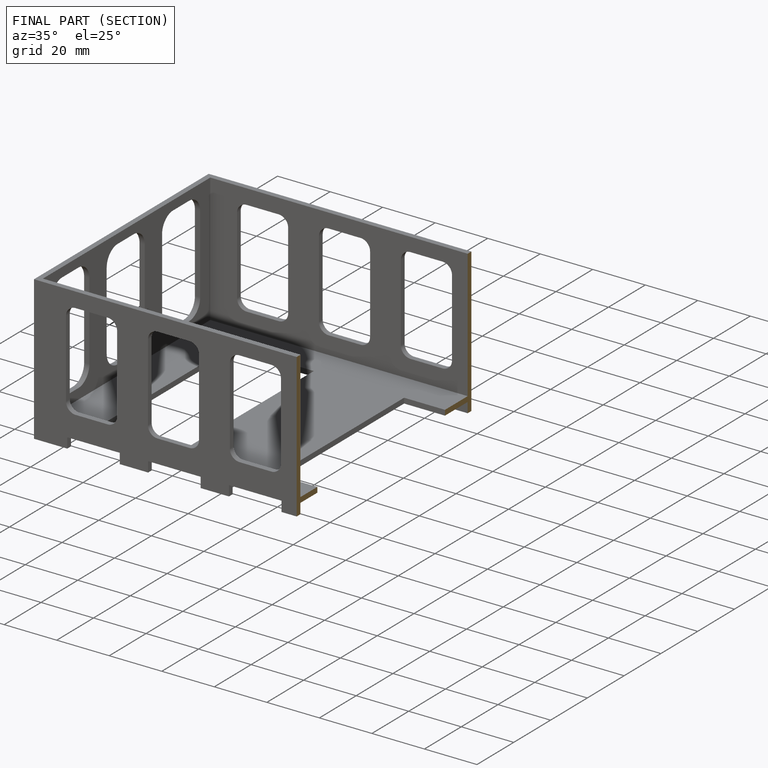
[diagram: finished part — half-section view (interior)]
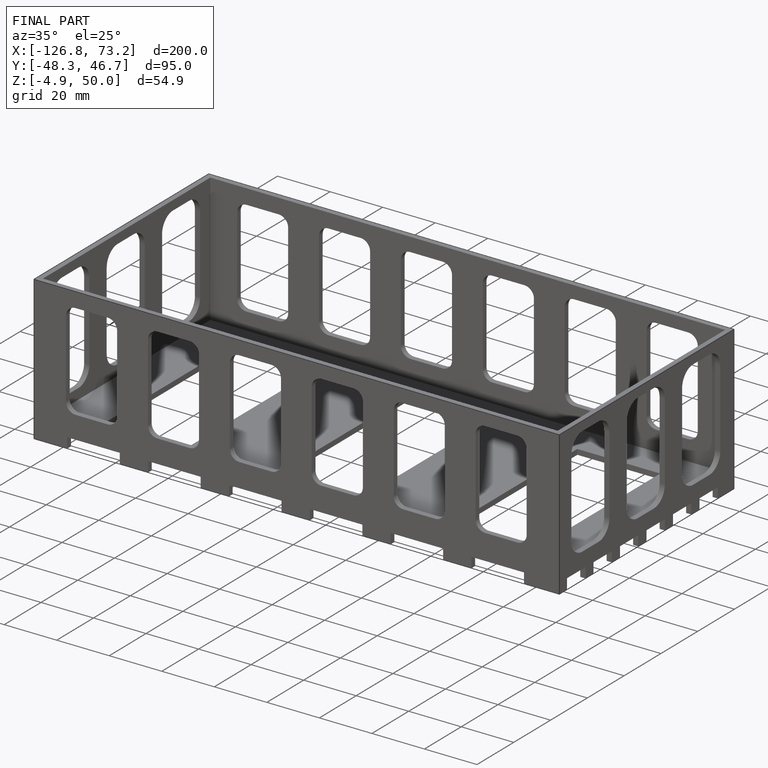
[diagram: finished part — iso view with bounding-box wireframe]
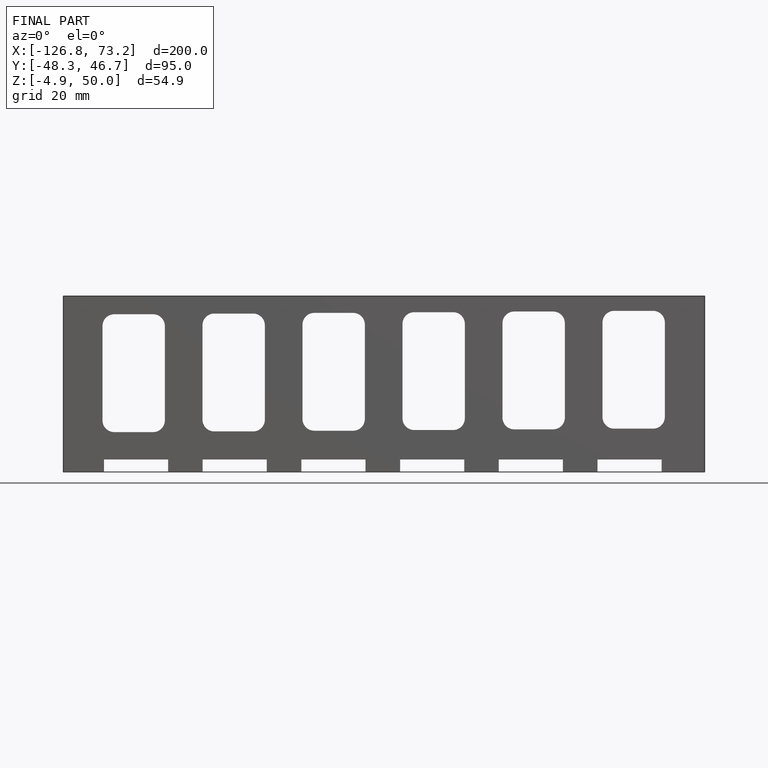
[diagram: finished part — front view with bounding-box wireframe]
